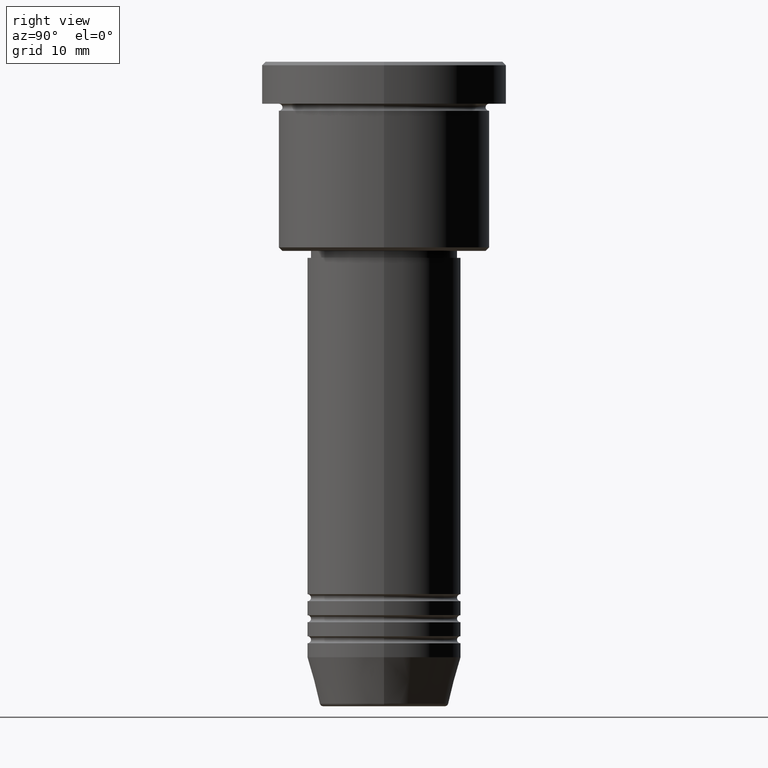
[diagram: clean part render]
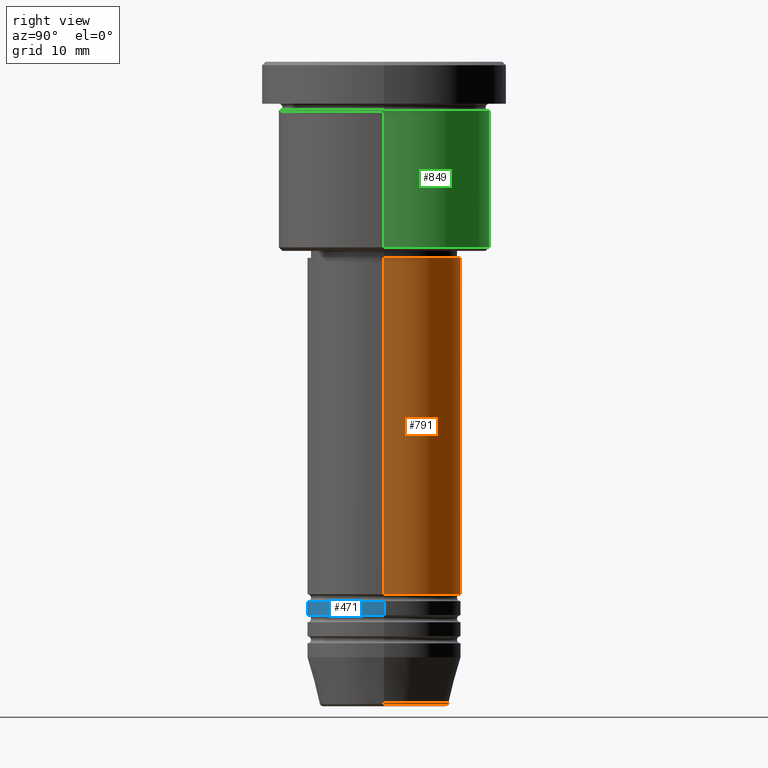
[diagram: same view with three faces highlighted in distinct colors, each labeled with its STEP entity id]
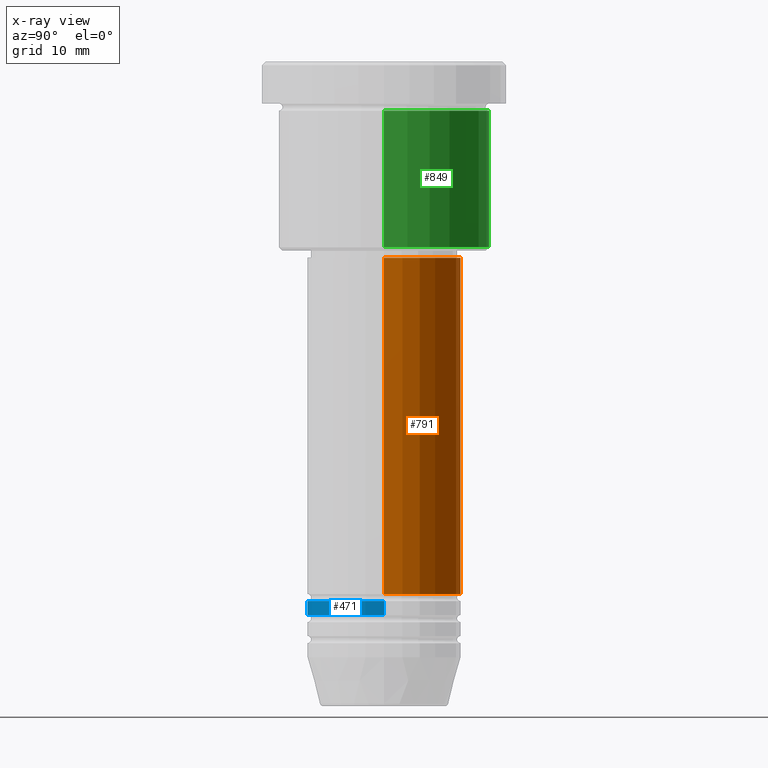
[diagram: x-ray of the same camera — body ghosted, the three highlighted faces saturated]
A machine part, right view with three faces highlighted in distinct colors.
The next image is the same camera in x-ray (body ghosted, the three faces saturated) — at least one of them is partly hidden behind the body in this view.
Their STEP definitions:

[orange] entity #791 — the highlighted cylindrical surface (partial cylindrical patch) has radius 11 mm, axis along (-0, -0, 1).
#47 = VERTEX_POINT ( 'NONE', #997 ) ;
#51 = CARTESIAN_POINT ( 'NONE',  ( 11.00000000000000000, 0.000000000000000000, -75.99999999999997158 ) ) ;
#100 = DIRECTION ( 'NONE',  ( -0.000000000000000000, -0.000000000000000000, 1.000000000000000000 ) ) ;
#110 = DIRECTION ( 'NONE',  ( -0.000000000000000000, -0.000000000000000000, 1.000000000000000000 ) ) ;
#150 = CARTESIAN_POINT ( 'NONE',  ( 0.000000000000000000, 0.000000000000000000, -75.99999999999997158 ) ) ;
#178 = FACE_OUTER_BOUND ( 'NONE', #949, .T. ) ;
#185 = CARTESIAN_POINT ( 'NONE',  ( 0.000000000000000000, 0.000000000000000000, -27.99999999999996803 ) ) ;
#240 = ORIENTED_EDGE ( 'NONE', *, *, #922, .T. ) ;
#279 = EDGE_CURVE ( 'NONE', #517, #664, #1149, .T. ) ;
#294 = CIRCLE ( 'NONE', #632, 11.00000000000000000 ) ;
#360 = VECTOR ( 'NONE', #780, 1000.000000000000000 ) ;
#372 = CARTESIAN_POINT ( 'NONE',  ( 0.000000000000000000, 0.000000000000000000, 0.000000000000000000 ) ) ;
#422 = DIRECTION ( 'NONE',  ( 1.000000000000000000, 0.000000000000000000, 0.000000000000000000 ) ) ;
#483 = ORIENTED_EDGE ( 'NONE', *, *, #1021, .T. ) ;
#486 = LINE ( 'NONE', #668, #1078 ) ;
#517 = VERTEX_POINT ( 'NONE', #51 ) ;
#535 = CARTESIAN_POINT ( 'NONE',  ( 11.00000000000000000, 0.000000000000000000, -27.99999999999996803 ) ) ;
#541 = DIRECTION ( 'NONE',  ( 1.000000000000000000, 0.000000000000000000, 0.000000000000000000 ) ) ;
#547 = CYLINDRICAL_SURFACE ( 'NONE', #807, 11.00000000000000000 ) ;
#632 = AXIS2_PLACEMENT_3D ( 'NONE', #185, #100, #671 ) ;
#654 = CARTESIAN_POINT ( 'NONE',  ( -11.00000000000000000, 1.347111479062088405E-15, -27.99999999999996803 ) ) ;
#664 = VERTEX_POINT ( 'NONE', #535 ) ;
#668 = CARTESIAN_POINT ( 'NONE',  ( -11.00000000000000000, 1.347111479062088405E-15, 0.000000000000000000 ) ) ;
#671 = DIRECTION ( 'NONE',  ( 1.000000000000000000, 0.000000000000000000, 0.000000000000000000 ) ) ;
#729 = ORIENTED_EDGE ( 'NONE', *, *, #1161, .F. ) ;
#734 = VERTEX_POINT ( 'NONE', #654 ) ;
#780 = DIRECTION ( 'NONE',  ( -0.000000000000000000, -0.000000000000000000, 1.000000000000000000 ) ) ;
#791 = ADVANCED_FACE ( 'NONE', ( #178 ), #547, .T. ) ;
#807 = AXIS2_PLACEMENT_3D ( 'NONE', #372, #110, #541 ) ;
#845 = CIRCLE ( 'NONE', #1167, 11.00000000000000000 ) ;
#877 = CARTESIAN_POINT ( 'NONE',  ( 11.00000000000000000, 0.000000000000000000, 0.000000000000000000 ) ) ;
#896 = DIRECTION ( 'NONE',  ( -0.000000000000000000, -0.000000000000000000, 1.000000000000000000 ) ) ;
#922 = EDGE_CURVE ( 'NONE', #47, #734, #486, .T. ) ;
#949 = EDGE_LOOP ( 'NONE', ( #483, #240, #729, #1018 ) ) ;
#997 = CARTESIAN_POINT ( 'NONE',  ( -11.00000000000000000, 1.347111479062088405E-15, -75.99999999999997158 ) ) ;
#1018 = ORIENTED_EDGE ( 'NONE', *, *, #279, .F. ) ;
#1021 = EDGE_CURVE ( 'NONE', #517, #47, #845, .T. ) ;
#1063 = DIRECTION ( 'NONE',  ( -0.000000000000000000, -0.000000000000000000, 1.000000000000000000 ) ) ;
#1078 = VECTOR ( 'NONE', #1063, 1000.000000000000000 ) ;
#1149 = LINE ( 'NONE', #877, #360 ) ;
#1161 = EDGE_CURVE ( 'NONE', #664, #734, #294, .T. ) ;
#1167 = AXIS2_PLACEMENT_3D ( 'NONE', #150, #896, #422 ) ;

[blue] entity #471 — the highlighted cylindrical surface (partial cylindrical patch) has radius 11 mm, axis along (-0, -0, 1).
#35 = DIRECTION ( 'NONE',  ( 1.000000000000000000, 0.000000000000000000, 0.000000000000000000 ) ) ;
#40 = EDGE_CURVE ( 'NONE', #353, #1064, #567, .T. ) ;
#44 = FACE_OUTER_BOUND ( 'NONE', #277, .T. ) ;
#119 = AXIS2_PLACEMENT_3D ( 'NONE', #495, #788, #239 ) ;
#127 = CARTESIAN_POINT ( 'NONE',  ( 11.00000000000000000, 0.000000000000000000, -78.99999999999997158 ) ) ;
#135 = EDGE_CURVE ( 'NONE', #801, #353, #378, .T. ) ;
#221 = EDGE_CURVE ( 'NONE', #540, #1064, #1123, .T. ) ;
#239 = DIRECTION ( 'NONE',  ( 1.000000000000000000, 0.000000000000000000, 0.000000000000000000 ) ) ;
#268 = EDGE_CURVE ( 'NONE', #801, #540, #387, .T. ) ;
#277 = EDGE_LOOP ( 'NONE', ( #514, #1042, #645, #934 ) ) ;
#353 = VERTEX_POINT ( 'NONE', #127 ) ;
#359 = VECTOR ( 'NONE', #610, 1000.000000000000000 ) ;
#373 = CARTESIAN_POINT ( 'NONE',  ( 11.00000000000000000, 0.000000000000000000, 0.000000000000000000 ) ) ;
#376 = DIRECTION ( 'NONE',  ( -0.000000000000000000, -0.000000000000000000, 1.000000000000000000 ) ) ;
#378 = CIRCLE ( 'NONE', #901, 11.00000000000000000 ) ;
#387 = LINE ( 'NONE', #399, #821 ) ;
#399 = CARTESIAN_POINT ( 'NONE',  ( -11.00000000000000000, 1.347111479062088405E-15, 0.000000000000000000 ) ) ;
#471 = ADVANCED_FACE ( 'NONE', ( #44 ), #865, .T. ) ;
#485 = DIRECTION ( 'NONE',  ( 1.000000000000000000, 0.000000000000000000, 0.000000000000000000 ) ) ;
#495 = CARTESIAN_POINT ( 'NONE',  ( 0.000000000000000000, 0.000000000000000000, -76.99999999999997158 ) ) ;
#512 = CARTESIAN_POINT ( 'NONE',  ( -11.00000000000000000, 1.347111479062088405E-15, -76.99999999999997158 ) ) ;
#514 = ORIENTED_EDGE ( 'NONE', *, *, #268, .F. ) ;
#540 = VERTEX_POINT ( 'NONE', #512 ) ;
#567 = LINE ( 'NONE', #373, #359 ) ;
#580 = CARTESIAN_POINT ( 'NONE',  ( 0.000000000000000000, 0.000000000000000000, -78.99999999999997158 ) ) ;
#610 = DIRECTION ( 'NONE',  ( -0.000000000000000000, -0.000000000000000000, 1.000000000000000000 ) ) ;
#621 = CARTESIAN_POINT ( 'NONE',  ( 11.00000000000000000, 0.000000000000000000, -76.99999999999997158 ) ) ;
#645 = ORIENTED_EDGE ( 'NONE', *, *, #40, .T. ) ;
#688 = CARTESIAN_POINT ( 'NONE',  ( 0.000000000000000000, 0.000000000000000000, 0.000000000000000000 ) ) ;
#697 = AXIS2_PLACEMENT_3D ( 'NONE', #688, #1130, #35 ) ;
#764 = DIRECTION ( 'NONE',  ( -0.000000000000000000, -0.000000000000000000, 1.000000000000000000 ) ) ;
#788 = DIRECTION ( 'NONE',  ( -0.000000000000000000, -0.000000000000000000, 1.000000000000000000 ) ) ;
#801 = VERTEX_POINT ( 'NONE', #1055 ) ;
#821 = VECTOR ( 'NONE', #764, 1000.000000000000000 ) ;
#865 = CYLINDRICAL_SURFACE ( 'NONE', #697, 11.00000000000000000 ) ;
#901 = AXIS2_PLACEMENT_3D ( 'NONE', #580, #376, #485 ) ;
#934 = ORIENTED_EDGE ( 'NONE', *, *, #221, .F. ) ;
#1042 = ORIENTED_EDGE ( 'NONE', *, *, #135, .T. ) ;
#1055 = CARTESIAN_POINT ( 'NONE',  ( -11.00000000000000000, 1.347111479062088405E-15, -78.99999999999997158 ) ) ;
#1064 = VERTEX_POINT ( 'NONE', #621 ) ;
#1123 = CIRCLE ( 'NONE', #119, 11.00000000000000000 ) ;
#1130 = DIRECTION ( 'NONE',  ( -0.000000000000000000, -0.000000000000000000, 1.000000000000000000 ) ) ;

[green] entity #849 — the highlighted cylindrical surface (partial cylindrical patch) has radius 15 mm, axis along (-0, -0, 1).
#97 = VERTEX_POINT ( 'NONE', #1182 ) ;
#142 = VECTOR ( 'NONE', #259, 1000.000000000000000 ) ;
#205 = CARTESIAN_POINT ( 'NONE',  ( 15.00000000000000000, 0.000000000000000000, 0.000000000000000000 ) ) ;
#225 = CARTESIAN_POINT ( 'NONE',  ( -15.00000000000000000, 1.836970198721029589E-15, -26.49999999999998579 ) ) ;
#247 = ORIENTED_EDGE ( 'NONE', *, *, #1066, .T. ) ;
#259 = DIRECTION ( 'NONE',  ( -0.000000000000000000, -0.000000000000000000, 1.000000000000000000 ) ) ;
#318 = DIRECTION ( 'NONE',  ( -0.000000000000000000, -0.000000000000000000, 1.000000000000000000 ) ) ;
#381 = AXIS2_PLACEMENT_3D ( 'NONE', #389, #318, #783 ) ;
#389 = CARTESIAN_POINT ( 'NONE',  ( 0.000000000000000000, 0.000000000000000000, 0.000000000000000000 ) ) ;
#402 = CYLINDRICAL_SURFACE ( 'NONE', #381, 15.00000000000000000 ) ;
#404 = ORIENTED_EDGE ( 'NONE', *, *, #910, .F. ) ;
#425 = AXIS2_PLACEMENT_3D ( 'NONE', #693, #1073, #1065 ) ;
#447 = EDGE_LOOP ( 'NONE', ( #900, #247, #578, #404 ) ) ;
#457 = EDGE_CURVE ( 'NONE', #820, #876, #629, .T. ) ;
#472 = VERTEX_POINT ( 'NONE', #225 ) ;
#502 = CARTESIAN_POINT ( 'NONE',  ( 15.00000000000000000, 0.000000000000000000, -6.999999999999995559 ) ) ;
#503 = VECTOR ( 'NONE', #1141, 1000.000000000000000 ) ;
#525 = DIRECTION ( 'NONE',  ( -0.000000000000000000, -0.000000000000000000, 1.000000000000000000 ) ) ;
#561 = AXIS2_PLACEMENT_3D ( 'NONE', #897, #525, #981 ) ;
#578 = ORIENTED_EDGE ( 'NONE', *, *, #457, .F. ) ;
#583 = CARTESIAN_POINT ( 'NONE',  ( -15.00000000000000000, 1.836970198721029589E-15, -6.999999999999995559 ) ) ;
#629 = CIRCLE ( 'NONE', #425, 15.00000000000000000 ) ;
#652 = EDGE_CURVE ( 'NONE', #97, #472, #1095, .T. ) ;
#693 = CARTESIAN_POINT ( 'NONE',  ( 0.000000000000000000, 0.000000000000000000, -6.999999999999995559 ) ) ;
#783 = DIRECTION ( 'NONE',  ( 1.000000000000000000, 0.000000000000000000, 0.000000000000000000 ) ) ;
#820 = VERTEX_POINT ( 'NONE', #502 ) ;
#849 = ADVANCED_FACE ( 'NONE', ( #857 ), #402, .T. ) ;
#857 = FACE_OUTER_BOUND ( 'NONE', #447, .T. ) ;
#876 = VERTEX_POINT ( 'NONE', #583 ) ;
#897 = CARTESIAN_POINT ( 'NONE',  ( 0.000000000000000000, 0.000000000000000000, -26.49999999999998579 ) ) ;
#900 = ORIENTED_EDGE ( 'NONE', *, *, #652, .T. ) ;
#910 = EDGE_CURVE ( 'NONE', #97, #820, #1045, .T. ) ;
#981 = DIRECTION ( 'NONE',  ( -1.000000000000000000, 0.000000000000000000, 0.000000000000000000 ) ) ;
#985 = CARTESIAN_POINT ( 'NONE',  ( -15.00000000000000000, 1.836970198721029589E-15, 0.000000000000000000 ) ) ;
#1045 = LINE ( 'NONE', #205, #503 ) ;
#1065 = DIRECTION ( 'NONE',  ( 1.000000000000000000, 0.000000000000000000, 0.000000000000000000 ) ) ;
#1066 = EDGE_CURVE ( 'NONE', #472, #876, #1157, .T. ) ;
#1073 = DIRECTION ( 'NONE',  ( -0.000000000000000000, -0.000000000000000000, 1.000000000000000000 ) ) ;
#1095 = CIRCLE ( 'NONE', #561, 15.00000000000000000 ) ;
#1141 = DIRECTION ( 'NONE',  ( -0.000000000000000000, -0.000000000000000000, 1.000000000000000000 ) ) ;
#1157 = LINE ( 'NONE', #985, #142 ) ;
#1182 = CARTESIAN_POINT ( 'NONE',  ( 15.00000000000000000, 0.000000000000000000, -26.49999999999998579 ) ) ;